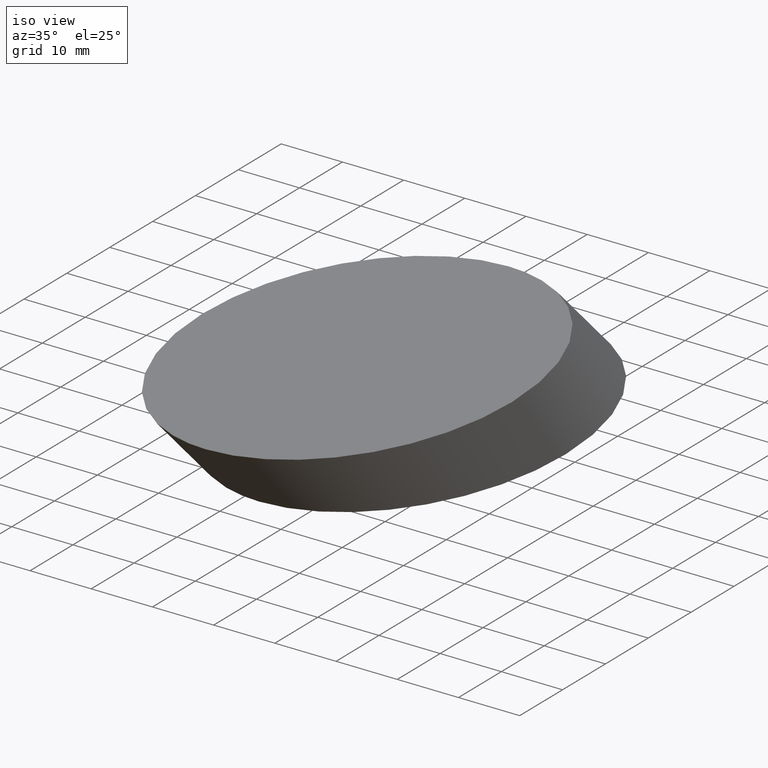
[diagram: clean part render]
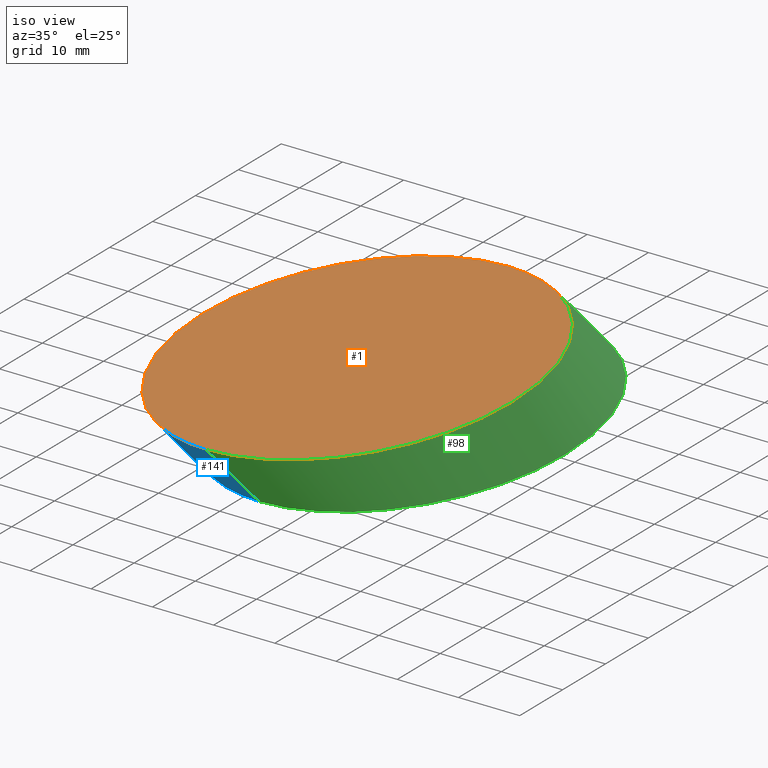
[diagram: same view with three faces highlighted in distinct colors, each labeled with its STEP entity id]
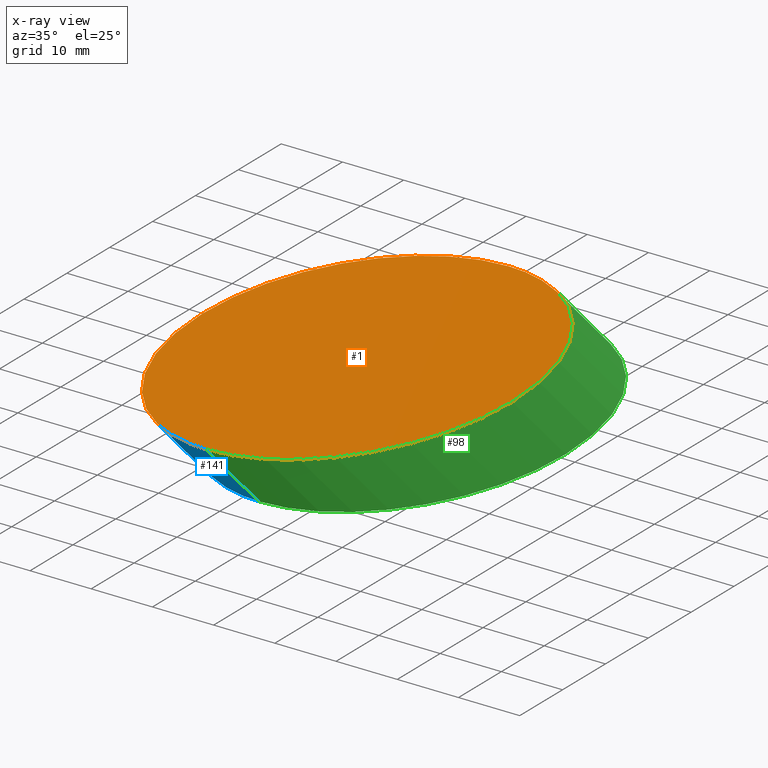
[diagram: x-ray of the same camera — body ghosted, the three highlighted faces saturated]
A machine part, iso view with three faces highlighted in distinct colors.
The next image is the same camera in x-ray (body ghosted, the three faces saturated) — at least one of them is partly hidden behind the body in this view.
Their STEP definitions:

[orange] entity #1 — the highlighted planar face has unit normal (0, 0, 1).
#1 = ADVANCED_FACE ( 'NONE', ( #28 ), #76, .T. ) ;
#8 = CARTESIAN_POINT ( 'NONE',  ( 54.39238298171605400, 0.4288715303221030100, 0.0000000000000000000 ) ) ;
#16 = CARTESIAN_POINT ( 'NONE',  ( 54.39238298171605400, 35.78887153032210500, 0.0000000000000000000 ) ) ;
#26 = DIRECTION ( 'NONE',  ( 1.000000000000000000, 0.0000000000000000000, -0.0000000000000000000 ) ) ;
#28 = FACE_OUTER_BOUND ( 'NONE', #53, .T. ) ;
#29 =( BOUNDED_CURVE ( )  B_SPLINE_CURVE ( 3, ( #105, #122, #121, #81 ),
 .UNSPECIFIED., .F., .T. ) 
 B_SPLINE_CURVE_WITH_KNOTS ( ( 4, 4 ),
 ( 0.0000000000000000000, 3.141592653589793100 ),
 .UNSPECIFIED. ) 
 CURVE ( )  GEOMETRIC_REPRESENTATION_ITEM ( )  RATIONAL_B_SPLINE_CURVE ( ( 1.000000000000000000, 0.3333333333333333700, 0.3333333333333333700, 1.000000000000000000 ) ) 
 REPRESENTATION_ITEM ( '' )  );
#53 = EDGE_LOOP ( 'NONE', ( #114, #131 ) ) ;
#74 = EDGE_CURVE ( 'NONE', #108, #116, #89, .T. ) ;
#76 = PLANE ( 'NONE',  #90 ) ;
#77 = CARTESIAN_POINT ( 'NONE',  ( 54.39238298171605400, 71.14887153032211100, 0.0000000000000000000 ) ) ;
#81 = CARTESIAN_POINT ( 'NONE',  ( 54.39238298171605400, 0.4288715303221030100, 0.0000000000000000000 ) ) ;
#83 = EDGE_CURVE ( 'NONE', #116, #108, #29, .T. ) ;
#89 =( BOUNDED_CURVE ( )  B_SPLINE_CURVE ( 3, ( #96, #115, #95, #147 ),
 .UNSPECIFIED., .F., .T. ) 
 B_SPLINE_CURVE_WITH_KNOTS ( ( 4, 4 ),
 ( 3.141592653589793100, 6.283185307179586200 ),
 .UNSPECIFIED. ) 
 CURVE ( )  GEOMETRIC_REPRESENTATION_ITEM ( )  RATIONAL_B_SPLINE_CURVE ( ( 1.000000000000000000, 0.3333333333333333700, 0.3333333333333333700, 1.000000000000000000 ) ) 
 REPRESENTATION_ITEM ( '' )  );
#90 = AXIS2_PLACEMENT_3D ( 'NONE', #16, #92, #26 ) ;
#92 = DIRECTION ( 'NONE',  ( 0.0000000000000000000, 0.0000000000000000000, 1.000000000000000000 ) ) ;
#95 = CARTESIAN_POINT ( 'NONE',  ( 104.3923829817160700, 71.14887153032209700, 0.0000000000000000000 ) ) ;
#96 = CARTESIAN_POINT ( 'NONE',  ( 54.39238298171605400, 0.4288715303221030100, 0.0000000000000000000 ) ) ;
#105 = CARTESIAN_POINT ( 'NONE',  ( 54.39238298171605400, 71.14887153032211100, 0.0000000000000000000 ) ) ;
#108 = VERTEX_POINT ( 'NONE', #8 ) ;
#114 = ORIENTED_EDGE ( 'NONE', *, *, #83, .T. ) ;
#115 = CARTESIAN_POINT ( 'NONE',  ( 104.3923829817160700, 0.4288715303220943500, 0.0000000000000000000 ) ) ;
#116 = VERTEX_POINT ( 'NONE', #77 ) ;
#121 = CARTESIAN_POINT ( 'NONE',  ( 4.392382981716055600, 0.4288715303221117800, 0.0000000000000000000 ) ) ;
#122 = CARTESIAN_POINT ( 'NONE',  ( 4.392382981716055600, 71.14887153032209700, 0.0000000000000000000 ) ) ;
#131 = ORIENTED_EDGE ( 'NONE', *, *, #74, .T. ) ;
#147 = CARTESIAN_POINT ( 'NONE',  ( 54.39238298171605400, 71.14887153032211100, 0.0000000000000000000 ) ) ;

[blue] entity #141 — the highlighted face is a freeform B-spline surface patch.
#2 = FACE_OUTER_BOUND ( 'NONE', #49, .T. ) ;
#3 =( BOUNDED_SURFACE ( )  B_SPLINE_SURFACE ( 3, 1, ( 
 ( #135, #66 ),
 ( #69, #111 ),
 ( #31, #12 ),
 ( #85, #72 ) ),
 .UNSPECIFIED., .F., .F., .F. ) 
 B_SPLINE_SURFACE_WITH_KNOTS ( ( 4, 4 ),
 ( 2, 2 ),
 ( 0.0000000000000000000, 1.000000000000000000 ),
 ( 0.0000000000000000000, 1.000000000000000000 ),
 .UNSPECIFIED. ) 
 GEOMETRIC_REPRESENTATION_ITEM ( )  RATIONAL_B_SPLINE_SURFACE ( (
 ( 1.000000000000000000, 1.000000000000000000),
 ( 0.3333333333333333700, 0.3333333333333333700),
 ( 0.3333333333333333700, 0.3333333333333333700),
 ( 1.000000000000000000, 1.000000000000000000) ) ) 
 REPRESENTATION_ITEM ( '' )  SURFACE ( )  );
#6 = CARTESIAN_POINT ( 'NONE',  ( 4.392382981716055600, 83.65051942170029500, -12.50164789137814300 ) ) ;
#8 = CARTESIAN_POINT ( 'NONE',  ( 54.39238298171605400, 0.4288715303221030100, 0.0000000000000000000 ) ) ;
#12 = CARTESIAN_POINT ( 'NONE',  ( 4.392382981716055600, 0.4288715303221168300, -2.602085213965210200E-015 ) ) ;
#13 = LINE ( 'NONE', #97, #133 ) ;
#15 = EDGE_CURVE ( 'NONE', #40, #88, #94, .T. ) ;
#29 =( BOUNDED_CURVE ( )  B_SPLINE_CURVE ( 3, ( #105, #122, #121, #81 ),
 .UNSPECIFIED., .F., .T. ) 
 B_SPLINE_CURVE_WITH_KNOTS ( ( 4, 4 ),
 ( 0.0000000000000000000, 3.141592653589793100 ),
 .UNSPECIFIED. ) 
 CURVE ( )  GEOMETRIC_REPRESENTATION_ITEM ( )  RATIONAL_B_SPLINE_CURVE ( ( 1.000000000000000000, 0.3333333333333333700, 0.3333333333333333700, 1.000000000000000000 ) ) 
 REPRESENTATION_ITEM ( '' )  );
#31 = CARTESIAN_POINT ( 'NONE',  ( 4.392382981716055600, 12.93051942170029600, -12.50164789137813900 ) ) ;
#37 = ORIENTED_EDGE ( 'NONE', *, *, #83, .F. ) ;
#40 = VERTEX_POINT ( 'NONE', #103 ) ;
#41 = ORIENTED_EDGE ( 'NONE', *, *, #15, .T. ) ;
#42 = DIRECTION ( 'NONE',  ( 0.0000000000000000000, -0.7071067811865487900, 0.7071067811865463500 ) ) ;
#49 = EDGE_LOOP ( 'NONE', ( #41, #86, #37, #65 ) ) ;
#55 = CARTESIAN_POINT ( 'NONE',  ( 54.39238298171605400, 83.65051942170029500, -12.50164789137814100 ) ) ;
#57 = CARTESIAN_POINT ( 'NONE',  ( 54.39238298171605400, 12.93051942170028700, -12.50164789137814100 ) ) ;
#62 = LINE ( 'NONE', #112, #148 ) ;
#65 = ORIENTED_EDGE ( 'NONE', *, *, #107, .F. ) ;
#66 = CARTESIAN_POINT ( 'NONE',  ( 54.39238298171605400, 71.14887153032211100, -1.734723475976807100E-015 ) ) ;
#67 = DIRECTION ( 'NONE',  ( 0.0000000000000000000, -0.7071067811865487900, 0.7071067811865463500 ) ) ;
#69 = CARTESIAN_POINT ( 'NONE',  ( 4.392382981716055600, 83.65051942170029500, -12.50164789137813900 ) ) ;
#72 = CARTESIAN_POINT ( 'NONE',  ( 54.39238298171605400, 0.4288715303221064500, -1.734723475976807100E-015 ) ) ;
#77 = CARTESIAN_POINT ( 'NONE',  ( 54.39238298171605400, 71.14887153032211100, 0.0000000000000000000 ) ) ;
#78 = EDGE_CURVE ( 'NONE', #88, #108, #13, .T. ) ;
#81 = CARTESIAN_POINT ( 'NONE',  ( 54.39238298171605400, 0.4288715303221030100, 0.0000000000000000000 ) ) ;
#83 = EDGE_CURVE ( 'NONE', #116, #108, #29, .T. ) ;
#85 = CARTESIAN_POINT ( 'NONE',  ( 54.39238298171605400, 12.93051942170028700, -12.50164789137814100 ) ) ;
#86 = ORIENTED_EDGE ( 'NONE', *, *, #78, .T. ) ;
#88 = VERTEX_POINT ( 'NONE', #57 ) ;
#91 = CARTESIAN_POINT ( 'NONE',  ( 4.392382981716055600, 12.93051942170030000, -12.50164789137814300 ) ) ;
#94 =( BOUNDED_CURVE ( )  B_SPLINE_CURVE ( 3, ( #55, #6, #91, #100 ),
 .UNSPECIFIED., .F., .T. ) 
 B_SPLINE_CURVE_WITH_KNOTS ( ( 4, 4 ),
 ( 0.0000000000000000000, 3.141592653589793100 ),
 .UNSPECIFIED. ) 
 CURVE ( )  GEOMETRIC_REPRESENTATION_ITEM ( )  RATIONAL_B_SPLINE_CURVE ( ( 1.000000000000000000, 0.3333333333333333700, 0.3333333333333333700, 1.000000000000000000 ) ) 
 REPRESENTATION_ITEM ( '' )  );
#97 = CARTESIAN_POINT ( 'NONE',  ( 54.39238298171605400, 12.93051942170028700, -12.50164789137814100 ) ) ;
#100 = CARTESIAN_POINT ( 'NONE',  ( 54.39238298171605400, 12.93051942170028700, -12.50164789137814100 ) ) ;
#103 = CARTESIAN_POINT ( 'NONE',  ( 54.39238298171605400, 83.65051942170029500, -12.50164789137814100 ) ) ;
#105 = CARTESIAN_POINT ( 'NONE',  ( 54.39238298171605400, 71.14887153032211100, 0.0000000000000000000 ) ) ;
#107 = EDGE_CURVE ( 'NONE', #40, #116, #62, .T. ) ;
#108 = VERTEX_POINT ( 'NONE', #8 ) ;
#111 = CARTESIAN_POINT ( 'NONE',  ( 4.392382981716055600, 71.14887153032209700, -2.602085213965210200E-015 ) ) ;
#112 = CARTESIAN_POINT ( 'NONE',  ( 54.39238298171605400, 83.65051942170029500, -12.50164789137814100 ) ) ;
#116 = VERTEX_POINT ( 'NONE', #77 ) ;
#121 = CARTESIAN_POINT ( 'NONE',  ( 4.392382981716055600, 0.4288715303221117800, 0.0000000000000000000 ) ) ;
#122 = CARTESIAN_POINT ( 'NONE',  ( 4.392382981716055600, 71.14887153032209700, 0.0000000000000000000 ) ) ;
#133 = VECTOR ( 'NONE', #67, 1000.000000000000000 ) ;
#135 = CARTESIAN_POINT ( 'NONE',  ( 54.39238298171605400, 83.65051942170029500, -12.50164789137814100 ) ) ;
#141 = ADVANCED_FACE ( 'NONE', ( #2 ), #3, .T. ) ;
#148 = VECTOR ( 'NONE', #42, 1000.000000000000000 ) ;

[green] entity #98 — the highlighted face is a freeform B-spline surface patch.
#8 = CARTESIAN_POINT ( 'NONE',  ( 54.39238298171605400, 0.4288715303221030100, 0.0000000000000000000 ) ) ;
#13 = LINE ( 'NONE', #97, #133 ) ;
#14 =( BOUNDED_CURVE ( )  B_SPLINE_CURVE ( 3, ( #52, #101, #82, #146 ),
 .UNSPECIFIED., .F., .T. ) 
 B_SPLINE_CURVE_WITH_KNOTS ( ( 4, 4 ),
 ( 3.141592653589793100, 6.283185307179586200 ),
 .UNSPECIFIED. ) 
 CURVE ( )  GEOMETRIC_REPRESENTATION_ITEM ( )  RATIONAL_B_SPLINE_CURVE ( ( 1.000000000000000000, 0.3333333333333333700, 0.3333333333333333700, 1.000000000000000000 ) ) 
 REPRESENTATION_ITEM ( '' )  );
#20 = CARTESIAN_POINT ( 'NONE',  ( 54.39238298171605400, 0.4288715303221082300, -5.204170427930421300E-015 ) ) ;
#21 = ORIENTED_EDGE ( 'NONE', *, *, #23, .T. ) ;
#23 = EDGE_CURVE ( 'NONE', #88, #40, #14, .T. ) ;
#40 = VERTEX_POINT ( 'NONE', #103 ) ;
#42 = DIRECTION ( 'NONE',  ( 0.0000000000000000000, -0.7071067811865487900, 0.7071067811865463500 ) ) ;
#52 = CARTESIAN_POINT ( 'NONE',  ( 54.39238298171605400, 12.93051942170028700, -12.50164789137814100 ) ) ;
#56 = ORIENTED_EDGE ( 'NONE', *, *, #74, .F. ) ;
#57 = CARTESIAN_POINT ( 'NONE',  ( 54.39238298171605400, 12.93051942170028700, -12.50164789137814100 ) ) ;
#60 = CARTESIAN_POINT ( 'NONE',  ( 104.3923829817160500, 0.4288715303220986300, -5.204170427930420500E-015 ) ) ;
#62 = LINE ( 'NONE', #112, #148 ) ;
#67 = DIRECTION ( 'NONE',  ( 0.0000000000000000000, -0.7071067811865487900, 0.7071067811865463500 ) ) ;
#73 = ORIENTED_EDGE ( 'NONE', *, *, #107, .T. ) ;
#74 = EDGE_CURVE ( 'NONE', #108, #116, #89, .T. ) ;
#77 = CARTESIAN_POINT ( 'NONE',  ( 54.39238298171605400, 71.14887153032211100, 0.0000000000000000000 ) ) ;
#78 = EDGE_CURVE ( 'NONE', #88, #108, #13, .T. ) ;
#79 = CARTESIAN_POINT ( 'NONE',  ( 54.39238298171605400, 12.93051942170028700, -12.50164789137814100 ) ) ;
#80 = CARTESIAN_POINT ( 'NONE',  ( 54.39238298171605400, 83.65051942170029500, -12.50164789137814100 ) ) ;
#82 = CARTESIAN_POINT ( 'NONE',  ( 104.3923829817160700, 83.65051942170029500, -12.50164789137814300 ) ) ;
#88 = VERTEX_POINT ( 'NONE', #57 ) ;
#89 =( BOUNDED_CURVE ( )  B_SPLINE_CURVE ( 3, ( #96, #115, #95, #147 ),
 .UNSPECIFIED., .F., .T. ) 
 B_SPLINE_CURVE_WITH_KNOTS ( ( 4, 4 ),
 ( 3.141592653589793100, 6.283185307179586200 ),
 .UNSPECIFIED. ) 
 CURVE ( )  GEOMETRIC_REPRESENTATION_ITEM ( )  RATIONAL_B_SPLINE_CURVE ( ( 1.000000000000000000, 0.3333333333333333700, 0.3333333333333333700, 1.000000000000000000 ) ) 
 REPRESENTATION_ITEM ( '' )  );
#93 = ORIENTED_EDGE ( 'NONE', *, *, #78, .F. ) ;
#95 = CARTESIAN_POINT ( 'NONE',  ( 104.3923829817160700, 71.14887153032209700, 0.0000000000000000000 ) ) ;
#96 = CARTESIAN_POINT ( 'NONE',  ( 54.39238298171605400, 0.4288715303221030100, 0.0000000000000000000 ) ) ;
#97 = CARTESIAN_POINT ( 'NONE',  ( 54.39238298171605400, 12.93051942170028700, -12.50164789137814100 ) ) ;
#98 = ADVANCED_FACE ( 'NONE', ( #125 ), #139, .T. ) ;
#101 = CARTESIAN_POINT ( 'NONE',  ( 104.3923829817160700, 12.93051942170027900, -12.50164789137814300 ) ) ;
#103 = CARTESIAN_POINT ( 'NONE',  ( 54.39238298171605400, 83.65051942170029500, -12.50164789137814100 ) ) ;
#104 = CARTESIAN_POINT ( 'NONE',  ( 104.3923829817160500, 12.93051942170027900, -12.50164789137813900 ) ) ;
#107 = EDGE_CURVE ( 'NONE', #40, #116, #62, .T. ) ;
#108 = VERTEX_POINT ( 'NONE', #8 ) ;
#112 = CARTESIAN_POINT ( 'NONE',  ( 54.39238298171605400, 83.65051942170029500, -12.50164789137814100 ) ) ;
#113 = CARTESIAN_POINT ( 'NONE',  ( 104.3923829817160500, 83.65051942170029500, -12.50164789137813900 ) ) ;
#115 = CARTESIAN_POINT ( 'NONE',  ( 104.3923829817160700, 0.4288715303220943500, 0.0000000000000000000 ) ) ;
#116 = VERTEX_POINT ( 'NONE', #77 ) ;
#123 = CARTESIAN_POINT ( 'NONE',  ( 54.39238298171605400, 71.14887153032211100, -5.204170427930421300E-015 ) ) ;
#125 = FACE_OUTER_BOUND ( 'NONE', #129, .T. ) ;
#129 = EDGE_LOOP ( 'NONE', ( #93, #21, #73, #56 ) ) ;
#133 = VECTOR ( 'NONE', #67, 1000.000000000000000 ) ;
#137 = CARTESIAN_POINT ( 'NONE',  ( 104.3923829817160500, 71.14887153032209700, -5.204170427930420500E-015 ) ) ;
#139 =( BOUNDED_SURFACE ( )  B_SPLINE_SURFACE ( 3, 1, ( 
 ( #79, #20 ),
 ( #104, #60 ),
 ( #113, #137 ),
 ( #80, #123 ) ),
 .UNSPECIFIED., .F., .F., .F. ) 
 B_SPLINE_SURFACE_WITH_KNOTS ( ( 4, 4 ),
 ( 2, 2 ),
 ( 0.0000000000000000000, 1.000000000000000000 ),
 ( 0.0000000000000000000, 1.000000000000000000 ),
 .UNSPECIFIED. ) 
 GEOMETRIC_REPRESENTATION_ITEM ( )  RATIONAL_B_SPLINE_SURFACE ( (
 ( 1.000000000000000000, 1.000000000000000000),
 ( 0.3333333333333333700, 0.3333333333333333700),
 ( 0.3333333333333333700, 0.3333333333333333700),
 ( 1.000000000000000000, 1.000000000000000000) ) ) 
 REPRESENTATION_ITEM ( '' )  SURFACE ( )  );
#146 = CARTESIAN_POINT ( 'NONE',  ( 54.39238298171605400, 83.65051942170029500, -12.50164789137814100 ) ) ;
#147 = CARTESIAN_POINT ( 'NONE',  ( 54.39238298171605400, 71.14887153032211100, 0.0000000000000000000 ) ) ;
#148 = VECTOR ( 'NONE', #42, 1000.000000000000000 ) ;